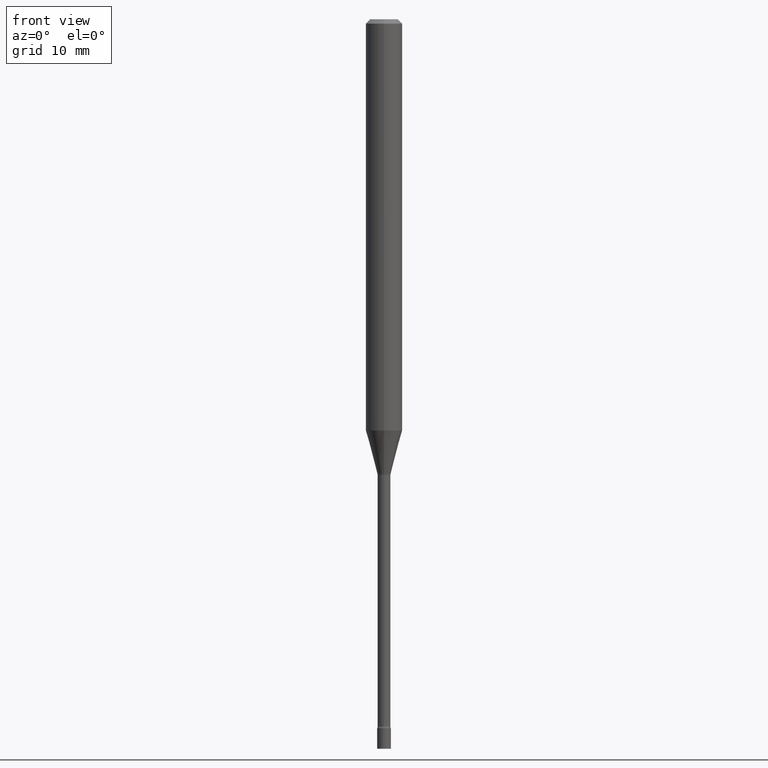
[diagram: clean part render]
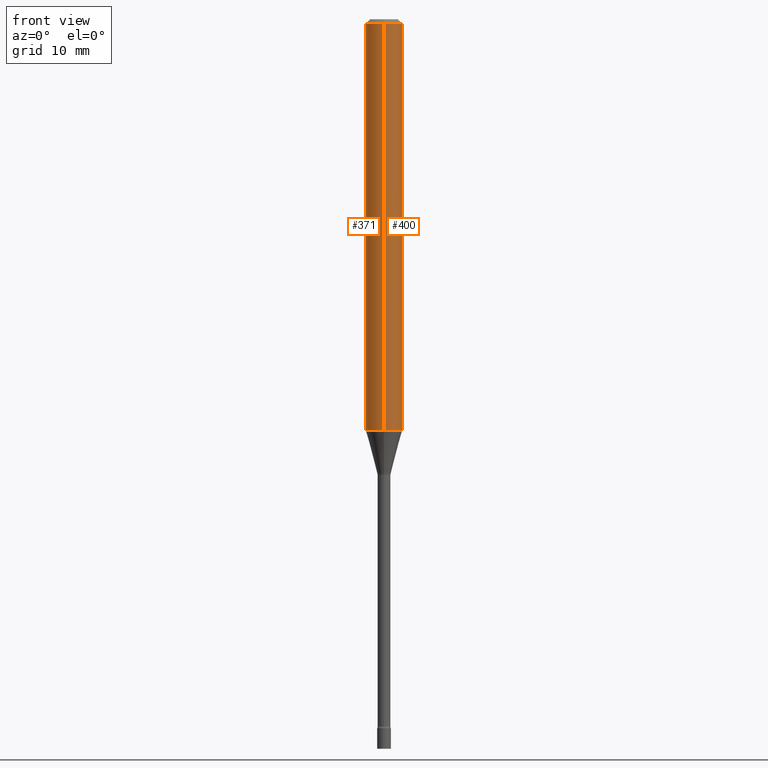
[diagram: same view with one multi-face feature highlighted, each face labeled with its STEP entity id]
A machine part, front view. The highlighted faces form ONE feature: a constant-radius fillet chain: 2 tangent blend faces with common blend radius 1.5875 mm. The faces share edges in the B-rep.
Their STEP definitions:
[1] entity #400 (Cylinder):
#3 = VECTOR ( 'NONE', #194, 39.37007874015748143 ) ;
#20 = DIRECTION ( 'NONE',  ( -6.982962677686265922E-15, -1.000000000000000000, 4.370956789862821150E-15 ) ) ;
#26 = CARTESIAN_POINT ( 'NONE',  ( 4.440892098500625669E-16, 0.06250000000000000000, -2.182183839755797990E-16 ) ) ;
#27 = DIRECTION ( 'NONE',  ( -6.982962677686265922E-15, -1.000000000000000000, 3.491494143609276784E-15 ) ) ;
#47 = ORIENTED_EDGE ( 'NONE', *, *, #436, .T. ) ;
#56 = DIRECTION ( 'NONE',  ( -2.445459864664737566E-29, 3.491494143609276784E-15, 1.000000000000000000 ) ) ;
#65 = EDGE_LOOP ( 'NONE', ( #195, #47, #395, #67 ) ) ;
#67 = ORIENTED_EDGE ( 'NONE', *, *, #501, .F. ) ;
#88 = VERTEX_POINT ( 'NONE', #146 ) ;
#108 = CARTESIAN_POINT ( 'NONE',  ( 0.000000000000000000, 0.000000000000000000, 0.000000000000000000 ) ) ;
#120 = LINE ( 'NONE', #280, #283 ) ;
#140 = CARTESIAN_POINT ( 'NONE',  ( 3.446203538179899442E-29, -4.920301349084003564E-15, -1.409225147374218112 ) ) ;
#144 = AXIS2_PLACEMENT_3D ( 'NONE', #178, #221, #500 ) ;
#146 = CARTESIAN_POINT ( 'NONE',  ( 4.440892098500968330E-16, 0.06249999999999506645, -1.409225147374218334 ) ) ;
#156 = CIRCLE ( 'NONE', #204, 0.06250000000000000000 ) ;
#178 = CARTESIAN_POINT ( 'NONE',  ( 3.668189796997113601E-31, -5.237241215413926147E-17, -0.01500000000000003067 ) ) ;
#193 = EDGE_CURVE ( 'NONE', #316, #88, #156, .T. ) ;
#194 = DIRECTION ( 'NONE',  ( -2.445459864664737566E-29, 3.491494143609276390E-15, 1.000000000000000000 ) ) ;
#195 = ORIENTED_EDGE ( 'NONE', *, *, #193, .T. ) ;
#204 = AXIS2_PLACEMENT_3D ( 'NONE', #140, #460, #20 ) ;
#214 = CARTESIAN_POINT ( 'NONE',  ( 4.440892098500972274E-16, 0.06249999999999993755, -0.01500000000000024751 ) ) ;
#221 = DIRECTION ( 'NONE',  ( -2.445459864664737566E-29, 3.491494143609276784E-15, 1.000000000000000000 ) ) ;
#234 = CARTESIAN_POINT ( 'NONE',  ( -4.364351673553912750E-16, -0.06250000000000005551, -0.01499999999999981209 ) ) ;
#247 = VERTEX_POINT ( 'NONE', #214 ) ;
#277 = LINE ( 'NONE', #26, #3 ) ;
#279 = EDGE_CURVE ( 'NONE', #311, #247, #446, .T. ) ;
#280 = CARTESIAN_POINT ( 'NONE',  ( -4.364351673553916201E-16, -0.06250000000000000000, 2.182183839755797990E-16 ) ) ;
#283 = VECTOR ( 'NONE', #509, 39.37007874015748143 ) ;
#311 = VERTEX_POINT ( 'NONE', #234 ) ;
#316 = VERTEX_POINT ( 'NONE', #476 ) ;
#330 = AXIS2_PLACEMENT_3D ( 'NONE', #108, #56, #27 ) ;
#395 = ORIENTED_EDGE ( 'NONE', *, *, #279, .F. ) ;
#400 = ADVANCED_FACE ( 'NONE', ( #464 ), #421, .T. ) ;
#421 = CYLINDRICAL_SURFACE ( 'NONE', #330, 0.06250000000000000000 ) ;
#436 = EDGE_CURVE ( 'NONE', #88, #247, #277, .T. ) ;
#446 = CIRCLE ( 'NONE', #144, 0.06250000000000000000 ) ;
#460 = DIRECTION ( 'NONE',  ( -2.445459864664737566E-29, 3.491494143609276784E-15, 1.000000000000000000 ) ) ;
#464 = FACE_OUTER_BOUND ( 'NONE', #65, .T. ) ;
#476 = CARTESIAN_POINT ( 'NONE',  ( -4.364351673553573540E-16, -0.06250000000000494049, -1.409225147374217890 ) ) ;
#500 = DIRECTION ( 'NONE',  ( -6.982962677686265922E-15, -1.000000000000000000, 3.483106191921935554E-15 ) ) ;
#501 = EDGE_CURVE ( 'NONE', #316, #311, #120, .T. ) ;
#509 = DIRECTION ( 'NONE',  ( -2.445459864664737566E-29, 3.491494143609276390E-15, 1.000000000000000000 ) ) ;
[2] entity #371 (Cylinder):
#3 = VECTOR ( 'NONE', #194, 39.37007874015748143 ) ;
#14 = ORIENTED_EDGE ( 'NONE', *, *, #251, .T. ) ;
#26 = CARTESIAN_POINT ( 'NONE',  ( 4.440892098500625669E-16, 0.06250000000000000000, -2.182183839755797990E-16 ) ) ;
#74 = AXIS2_PLACEMENT_3D ( 'NONE', #138, #225, #378 ) ;
#88 = VERTEX_POINT ( 'NONE', #146 ) ;
#120 = LINE ( 'NONE', #280, #283 ) ;
#138 = CARTESIAN_POINT ( 'NONE',  ( 3.446203538179899442E-29, -4.920301349084003564E-15, -1.409225147374218112 ) ) ;
#146 = CARTESIAN_POINT ( 'NONE',  ( 4.440892098500968330E-16, 0.06249999999999506645, -1.409225147374218334 ) ) ;
#157 = CARTESIAN_POINT ( 'NONE',  ( 3.668189796997113601E-31, -5.237241215413926147E-17, -0.01500000000000003067 ) ) ;
#169 = AXIS2_PLACEMENT_3D ( 'NONE', #157, #481, #442 ) ;
#194 = DIRECTION ( 'NONE',  ( -2.445459864664737566E-29, 3.491494143609276390E-15, 1.000000000000000000 ) ) ;
#214 = CARTESIAN_POINT ( 'NONE',  ( 4.440892098500972274E-16, 0.06249999999999993755, -0.01500000000000024751 ) ) ;
#225 = DIRECTION ( 'NONE',  ( -2.445459864664737566E-29, 3.491494143609276784E-15, 1.000000000000000000 ) ) ;
#231 = EDGE_LOOP ( 'NONE', ( #233, #14, #275, #423 ) ) ;
#233 = ORIENTED_EDGE ( 'NONE', *, *, #436, .F. ) ;
#234 = CARTESIAN_POINT ( 'NONE',  ( -4.364351673553912750E-16, -0.06250000000000005551, -0.01499999999999981209 ) ) ;
#247 = VERTEX_POINT ( 'NONE', #214 ) ;
#251 = EDGE_CURVE ( 'NONE', #88, #316, #315, .T. ) ;
#272 = CARTESIAN_POINT ( 'NONE',  ( 0.000000000000000000, 0.000000000000000000, 0.000000000000000000 ) ) ;
#275 = ORIENTED_EDGE ( 'NONE', *, *, #501, .T. ) ;
#277 = LINE ( 'NONE', #26, #3 ) ;
#280 = CARTESIAN_POINT ( 'NONE',  ( -4.364351673553916201E-16, -0.06250000000000000000, 2.182183839755797990E-16 ) ) ;
#283 = VECTOR ( 'NONE', #509, 39.37007874015748143 ) ;
#311 = VERTEX_POINT ( 'NONE', #234 ) ;
#315 = CIRCLE ( 'NONE', #74, 0.06250000000000000000 ) ;
#316 = VERTEX_POINT ( 'NONE', #476 ) ;
#340 = DIRECTION ( 'NONE',  ( -6.982962677686265922E-15, -1.000000000000000000, 3.491494143609276784E-15 ) ) ;
#345 = DIRECTION ( 'NONE',  ( -2.445459864664737566E-29, 3.491494143609276784E-15, 1.000000000000000000 ) ) ;
#357 = FACE_OUTER_BOUND ( 'NONE', #231, .T. ) ;
#361 = CIRCLE ( 'NONE', #169, 0.06250000000000000000 ) ;
#371 = ADVANCED_FACE ( 'NONE', ( #357 ), #438, .T. ) ;
#378 = DIRECTION ( 'NONE',  ( -6.982962677686265922E-15, -1.000000000000000000, 4.370956789862821150E-15 ) ) ;
#381 = AXIS2_PLACEMENT_3D ( 'NONE', #272, #345, #340 ) ;
#423 = ORIENTED_EDGE ( 'NONE', *, *, #484, .F. ) ;
#436 = EDGE_CURVE ( 'NONE', #88, #247, #277, .T. ) ;
#438 = CYLINDRICAL_SURFACE ( 'NONE', #381, 0.06250000000000000000 ) ;
#442 = DIRECTION ( 'NONE',  ( -6.982962677686265922E-15, -1.000000000000000000, 3.483106191921935554E-15 ) ) ;
#476 = CARTESIAN_POINT ( 'NONE',  ( -4.364351673553573540E-16, -0.06250000000000494049, -1.409225147374217890 ) ) ;
#481 = DIRECTION ( 'NONE',  ( -2.445459864664737566E-29, 3.491494143609276784E-15, 1.000000000000000000 ) ) ;
#484 = EDGE_CURVE ( 'NONE', #247, #311, #361, .T. ) ;
#501 = EDGE_CURVE ( 'NONE', #316, #311, #120, .T. ) ;
#509 = DIRECTION ( 'NONE',  ( -2.445459864664737566E-29, 3.491494143609276390E-15, 1.000000000000000000 ) ) ;